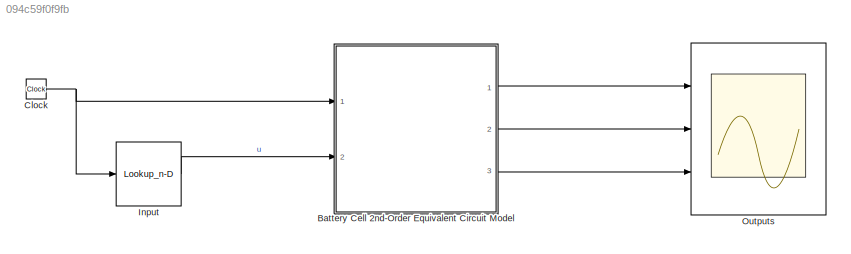
MODEL slx_094c59f0f9fb
KIND model
CONFIG AbsTol = auto
CONFIG EnableMultiTasking = off
CONFIG FixedStep = auto
CONFIG MaxStep = auto
CONFIG MinStep = auto
CONFIG RelTol = 1e-3
CONFIG SampleTimeConstraint = Unconstrained
CONFIG SolverName = VariableStepAuto
CONFIG StartTime = 0.0
CONFIG StopTime = t_final
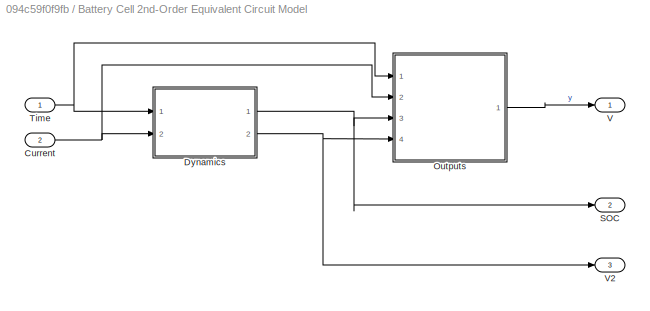
BLOCK [SubSystem] Battery Cell 2nd-Order Equivalent Circuit Model
  Ports = [2, 3]
  RequestExecContextInheritance = off
BLOCK [Inport] Battery Cell 2nd-Order Equivalent Circuit Model/Current
  Port = 2
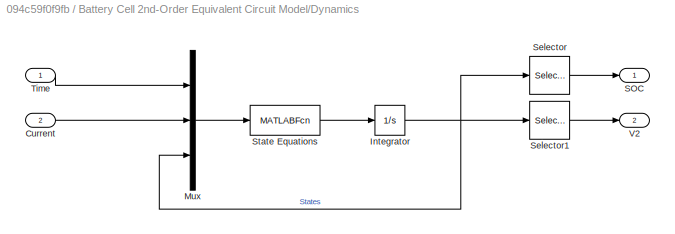
BLOCK [SubSystem] Battery Cell 2nd-Order Equivalent Circuit Model/Dynamics
  Ports = [2, 2]
  RequestExecContextInheritance = off
BLOCK [Inport] Battery Cell 2nd-Order Equivalent Circuit Model/Dynamics/Current
  Port = 2
BLOCK [Integrator] Battery Cell 2nd-Order Equivalent Circuit Model/Dynamics/Integrator
  InitialCondition = [SOC_initial;x2_initial]
  Ports = [1, 1]
BLOCK [Mux] Battery Cell 2nd-Order Equivalent Circuit Model/Dynamics/Mux
  DisplayOption = bar
  Inputs = 3
  Ports = [3, 1]
BLOCK [Outport] Battery Cell 2nd-Order Equivalent Circuit Model/Dynamics/SOC
BLOCK [Selector] Battery Cell 2nd-Order Equivalent Circuit Model/Dynamics/Selector
  IndexOptions = Index vector (dialog)
  Indices = [1]
  InputPortWidth = 2
  OutputSizes = 1
  Ports = [1, 1]
BLOCK [Selector] Battery Cell 2nd-Order Equivalent Circuit Model/Dynamics/Selector1
  IndexOptions = Index vector (dialog)
  Indices = [2]
  InputPortWidth = 2
  OutputSizes = 1
  Ports = [1, 1]
BLOCK [MATLABFcn] Battery Cell 2nd-Order Equivalent Circuit Model/Dynamics/State Equations
  MATLABFcn = state_eqns
  Ports = [1, 1]
BLOCK [Inport] Battery Cell 2nd-Order Equivalent Circuit Model/Dynamics/Time
BLOCK [Outport] Battery Cell 2nd-Order Equivalent Circuit Model/Dynamics/V2
  Port = 2
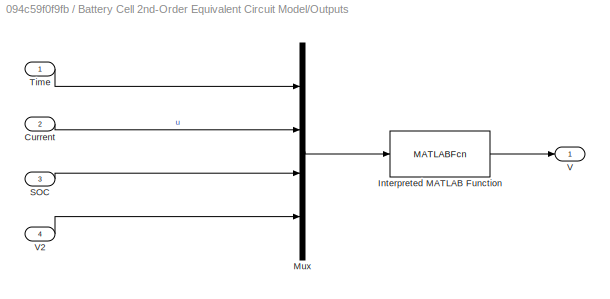
BLOCK [SubSystem] Battery Cell 2nd-Order Equivalent Circuit Model/Outputs
  Ports = [4, 1]
  RequestExecContextInheritance = off
BLOCK [Inport] Battery Cell 2nd-Order Equivalent Circuit Model/Outputs/Current
  Port = 2
BLOCK [MATLABFcn] Battery Cell 2nd-Order Equivalent Circuit Model/Outputs/Interpreted MATLAB Function
  MATLABFcn = output_V
  Ports = [1, 1]
BLOCK [Mux] Battery Cell 2nd-Order Equivalent Circuit Model/Outputs/Mux
  DisplayOption = bar
  Ports = [4, 1]
BLOCK [Inport] Battery Cell 2nd-Order Equivalent Circuit Model/Outputs/SOC
  Port = 3
BLOCK [Inport] Battery Cell 2nd-Order Equivalent Circuit Model/Outputs/Time
BLOCK [Outport] Battery Cell 2nd-Order Equivalent Circuit Model/Outputs/V
BLOCK [Inport] Battery Cell 2nd-Order Equivalent Circuit Model/Outputs/V2
  Port = 4
BLOCK [Outport] Battery Cell 2nd-Order Equivalent Circuit Model/SOC
  Port = 2
BLOCK [Inport] Battery Cell 2nd-Order Equivalent Circuit Model/Time
BLOCK [Outport] Battery Cell 2nd-Order Equivalent Circuit Model/V
BLOCK [Outport] Battery Cell 2nd-Order Equivalent Circuit Model/V2
  Port = 3
BLOCK [Clock] Clock
BLOCK [Lookup_n-D] Input
  BreakpointsForDimension1 = t
  InputPortMap = u0
  InternalRulePriority = Speed
  NumberOfTableDimensions = 1
  Ports = [1, 1]
  RndMeth = Simplest
  Table = u
BLOCK [Scope] Outputs
  Floating = off
  NumInputPorts = 3
  Ports = [3]
  ScopeSpecificationString = Simulink.scopes.TimeScopeBlockCfg('CurrentConfiguration', extmgr.ConfigurationSet(extmgr.Configuration('Core','General UI',true),extmgr.Configuration('Core','Source UI',true),extmgr.Configuration('Sources','WiredSimulink',true),extmgr.Configuration('Visuals','Time Domain',true,'SerializedDisplays',{struct('MinYLimReal','3.33786','MaxYLimReal','3.35924','YLabelReal','Output Voltage','MinYLimMag','3...<+2811ch>
NET Battery Cell 2nd-Order Equivalent Circuit Model/Current:1 -> Battery Cell 2nd-Order Equivalent Circuit Model/Dynamics:2, Battery Cell 2nd-Order Equivalent Circuit Model/Outputs:2
LINE Battery Cell 2nd-Order Equivalent Circuit Model/Dynamics/Current:1 -> Battery Cell 2nd-Order Equivalent Circuit Model/Dynamics/Mux:2
NET Battery Cell 2nd-Order Equivalent Circuit Model/Dynamics/Integrator:1 -> Battery Cell 2nd-Order Equivalent Circuit Model/Dynamics/Mux:3, Battery Cell 2nd-Order Equivalent Circuit Model/Dynamics/Selector1:1, Battery Cell 2nd-Order Equivalent Circuit Model/Dynamics/Selector:1
LINE Battery Cell 2nd-Order Equivalent Circuit Model/Dynamics/Mux:1 -> Battery Cell 2nd-Order Equivalent Circuit Model/Dynamics/State Equations:1
LINE Battery Cell 2nd-Order Equivalent Circuit Model/Dynamics/Selector1:1 -> Battery Cell 2nd-Order Equivalent Circuit Model/Dynamics/V2:1
LINE Battery Cell 2nd-Order Equivalent Circuit Model/Dynamics/Selector:1 -> Battery Cell 2nd-Order Equivalent Circuit Model/Dynamics/SOC:1
LINE Battery Cell 2nd-Order Equivalent Circuit Model/Dynamics/State Equations:1 -> Battery Cell 2nd-Order Equivalent Circuit Model/Dynamics/Integrator:1
LINE Battery Cell 2nd-Order Equivalent Circuit Model/Dynamics/Time:1 -> Battery Cell 2nd-Order Equivalent Circuit Model/Dynamics/Mux:1
NET Battery Cell 2nd-Order Equivalent Circuit Model/Dynamics:1 -> Battery Cell 2nd-Order Equivalent Circuit Model/Outputs:3, Battery Cell 2nd-Order Equivalent Circuit Model/SOC:1
NET Battery Cell 2nd-Order Equivalent Circuit Model/Dynamics:2 -> Battery Cell 2nd-Order Equivalent Circuit Model/Outputs:4, Battery Cell 2nd-Order Equivalent Circuit Model/V2:1
LINE Battery Cell 2nd-Order Equivalent Circuit Model/Outputs/Current:1 -> Battery Cell 2nd-Order Equivalent Circuit Model/Outputs/Mux:2
LINE Battery Cell 2nd-Order Equivalent Circuit Model/Outputs/Interpreted MATLAB Function:1 -> Battery Cell 2nd-Order Equivalent Circuit Model/Outputs/V:1
LINE Battery Cell 2nd-Order Equivalent Circuit Model/Outputs/Mux:1 -> Battery Cell 2nd-Order Equivalent Circuit Model/Outputs/Interpreted MATLAB Function:1
LINE Battery Cell 2nd-Order Equivalent Circuit Model/Outputs/SOC:1 -> Battery Cell 2nd-Order Equivalent Circuit Model/Outputs/Mux:3
LINE Battery Cell 2nd-Order Equivalent Circuit Model/Outputs/Time:1 -> Battery Cell 2nd-Order Equivalent Circuit Model/Outputs/Mux:1
LINE Battery Cell 2nd-Order Equivalent Circuit Model/Outputs/V2:1 -> Battery Cell 2nd-Order Equivalent Circuit Model/Outputs/Mux:4
LINE Battery Cell 2nd-Order Equivalent Circuit Model/Outputs:1 -> Battery Cell 2nd-Order Equivalent Circuit Model/V:1
NET Battery Cell 2nd-Order Equivalent Circuit Model/Time:1 -> Battery Cell 2nd-Order Equivalent Circuit Model/Dynamics:1, Battery Cell 2nd-Order Equivalent Circuit Model/Outputs:1
LINE Battery Cell 2nd-Order Equivalent Circuit Model:1 -> Outputs:1
LINE Battery Cell 2nd-Order Equivalent Circuit Model:2 -> Outputs:2
LINE Battery Cell 2nd-Order Equivalent Circuit Model:3 -> Outputs:3
NET Clock:1 -> Battery Cell 2nd-Order Equivalent Circuit Model:1, Input:1
LINE Input:1 -> Battery Cell 2nd-Order Equivalent Circuit Model:2
note: NET lines group one-source signal fan-out (src -> all destinations, sorted); 1:1 wires keep LINE
